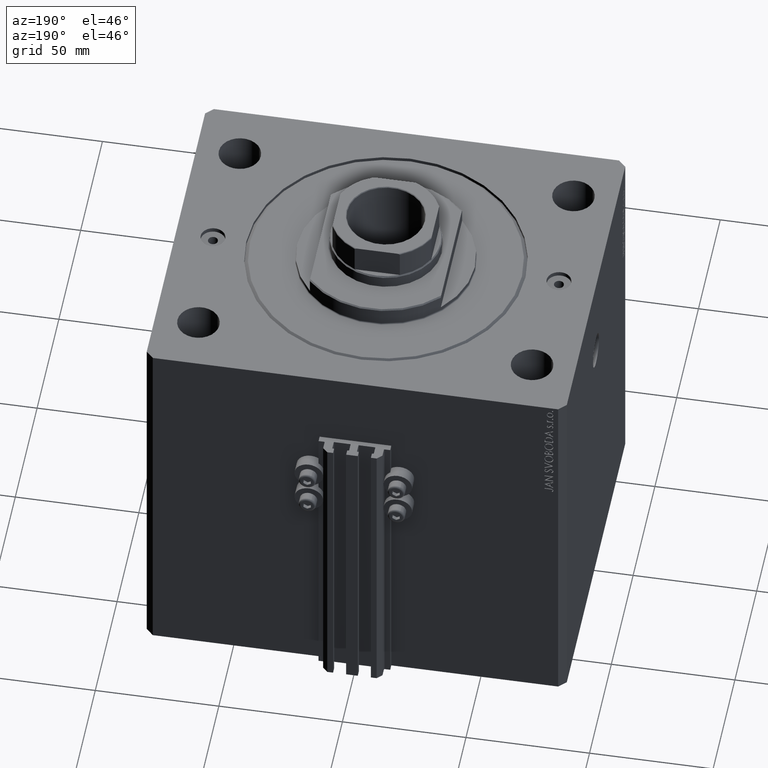
[diagram: clean part render]
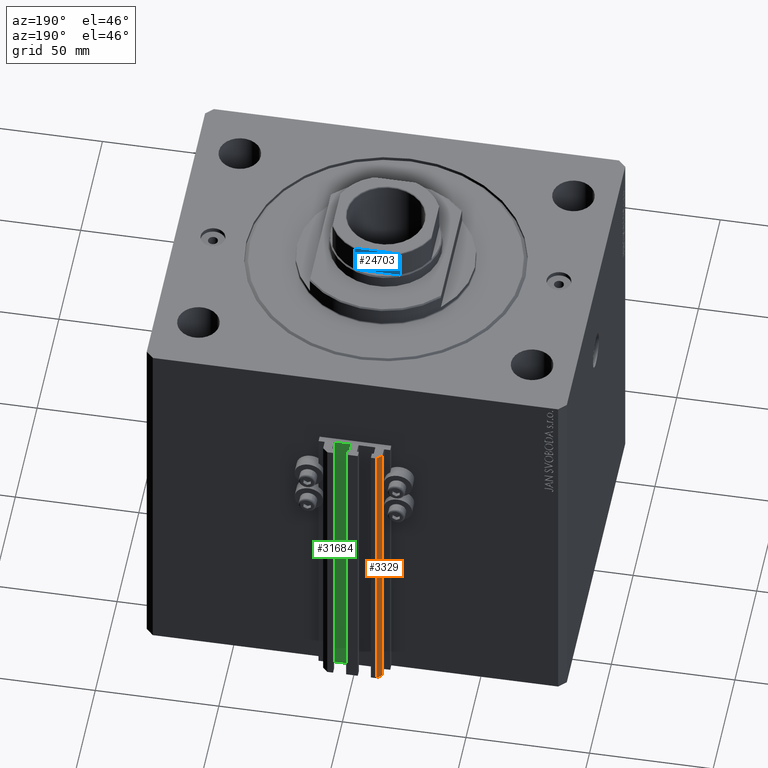
[diagram: same view with three faces highlighted in distinct colors, each labeled with its STEP entity id]
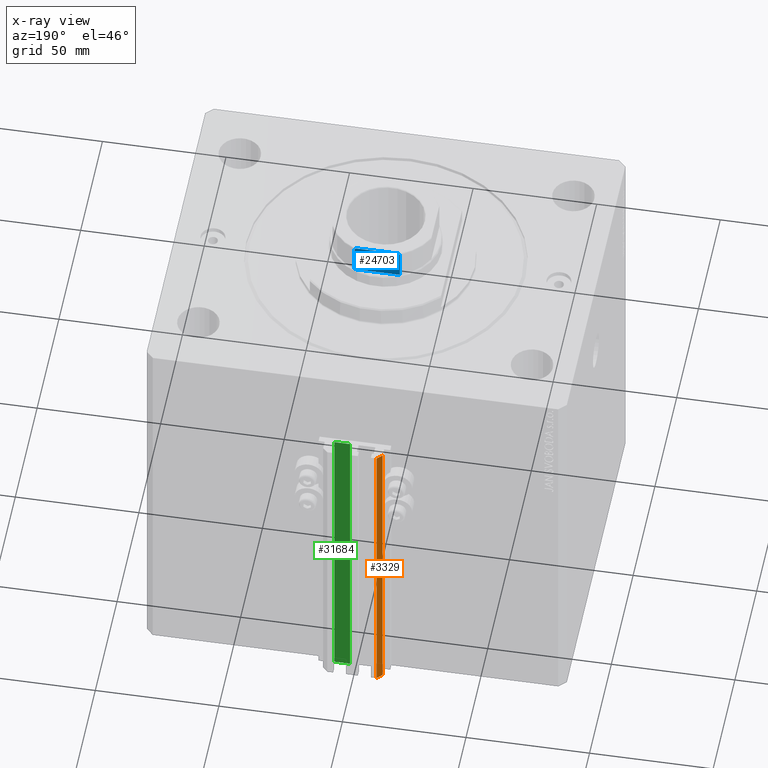
[diagram: x-ray of the same camera — body ghosted, the three highlighted faces saturated]
A machine part, auxiliary view with three faces highlighted in distinct colors.
The next image is the same camera in x-ray (body ghosted, the three faces saturated) — at least one of them is partly hidden behind the body in this view.
Their STEP definitions:

[orange] entity #3329 — the highlighted planar face has unit normal (-0.7071, 0.7071, 0).
#1646 = ORIENTED_EDGE ( 'NONE', *, *, #19211, .F. ) ;
#1848 = EDGE_LOOP ( 'NONE', ( #46289, #1646, #22644, #17318 ) ) ;
#3329 = ADVANCED_FACE ( 'NONE', ( #39361 ), #6660, .T. ) ;
#4456 = VERTEX_POINT ( 'NONE', #31312 ) ;
#4729 = VERTEX_POINT ( 'NONE', #43874 ) ;
#6592 = EDGE_CURVE ( 'NONE', #4456, #31074, #30057, .T. ) ;
#6660 = PLANE ( 'NONE',  #15258 ) ;
#6681 = EDGE_CURVE ( 'NONE', #4729, #31074, #26952, .T. ) ;
#6946 = VECTOR ( 'NONE', #16697, 1000.000000000000114 ) ;
#7045 = VECTOR ( 'NONE', #29815, 1000.000000000000000 ) ;
#7686 = VERTEX_POINT ( 'NONE', #16040 ) ;
#8010 = DIRECTION ( 'NONE',  ( 0.000000000000000000, 0.000000000000000000, 1.000000000000000000 ) ) ;
#8089 = CARTESIAN_POINT ( 'NONE',  ( -10.00000000000000000, 78.00000000000001421, -33.00000000000000000 ) ) ;
#8812 = DIRECTION ( 'NONE',  ( -0.7071067811865446862, -0.7071067811865503483, 0.000000000000000000 ) ) ;
#8845 = LINE ( 'NONE', #27451, #6946 ) ;
#9782 = DIRECTION ( 'NONE',  ( -0.7071067811865447972, -0.7071067811865502373, 0.000000000000000000 ) ) ;
#12302 = LINE ( 'NONE', #23288, #37857 ) ;
#13604 = CARTESIAN_POINT ( 'NONE',  ( -12.00000000000000000, 76.00000000000000000, -33.00000000000000000 ) ) ;
#13846 = VECTOR ( 'NONE', #8812, 1000.000000000000114 ) ;
#15253 = CARTESIAN_POINT ( 'NONE',  ( -12.00000000000000000, 76.00000000000000000, -159.0000000000000000 ) ) ;
#15258 = AXIS2_PLACEMENT_3D ( 'NONE', #34828, #16702, #9782 ) ;
#16040 = CARTESIAN_POINT ( 'NONE',  ( -10.00000000000000000, 78.00000000000001421, -159.0000000000000000 ) ) ;
#16697 = DIRECTION ( 'NONE',  ( -0.7071067811865446862, -0.7071067811865503483, 0.000000000000000000 ) ) ;
#16702 = DIRECTION ( 'NONE',  ( -0.7071067811865502373, 0.7071067811865447972, 0.000000000000000000 ) ) ;
#17318 = ORIENTED_EDGE ( 'NONE', *, *, #6681, .T. ) ;
#19211 = EDGE_CURVE ( 'NONE', #7686, #4456, #12302, .T. ) ;
#22644 = ORIENTED_EDGE ( 'NONE', *, *, #35304, .T. ) ;
#23288 = CARTESIAN_POINT ( 'NONE',  ( -10.00000000000000000, 78.00000000000001421, -159.0000000000000000 ) ) ;
#26952 = LINE ( 'NONE', #15253, #7045 ) ;
#27451 = CARTESIAN_POINT ( 'NONE',  ( -10.00000000000000000, 78.00000000000001421, -159.0000000000000000 ) ) ;
#29815 = DIRECTION ( 'NONE',  ( 0.000000000000000000, 0.000000000000000000, 1.000000000000000000 ) ) ;
#30057 = LINE ( 'NONE', #8089, #13846 ) ;
#31074 = VERTEX_POINT ( 'NONE', #13604 ) ;
#31312 = CARTESIAN_POINT ( 'NONE',  ( -10.00000000000000000, 78.00000000000001421, -33.00000000000000000 ) ) ;
#34828 = CARTESIAN_POINT ( 'NONE',  ( -10.00000000000000000, 78.00000000000001421, -159.0000000000000000 ) ) ;
#35304 = EDGE_CURVE ( 'NONE', #7686, #4729, #8845, .T. ) ;
#37857 = VECTOR ( 'NONE', #8010, 1000.000000000000000 ) ;
#39361 = FACE_OUTER_BOUND ( 'NONE', #1848, .T. ) ;
#43874 = CARTESIAN_POINT ( 'NONE',  ( -12.00000000000000000, 76.00000000000000000, -159.0000000000000000 ) ) ;
#46289 = ORIENTED_EDGE ( 'NONE', *, *, #6592, .F. ) ;

[blue] entity #24703 — the highlighted planar face has unit normal (0, -1, 0).
#1285 = CARTESIAN_POINT ( 'NONE',  ( -9.055524318101882741, 19.99999999999999645, 154.8141986763097293 ) ) ;
#2125 = CARTESIAN_POINT ( 'NONE',  ( 9.165151389911676105, 20.00000000000000000, 154.6000000000000227 ) ) ;
#3697 = LINE ( 'NONE', #3937, #41048 ) ;
#3937 = CARTESIAN_POINT ( 'NONE',  ( 9.165151389911676105, 20.00000000000000000, -0.001000000000001000089 ) ) ;
#4396 = CARTESIAN_POINT ( 'NONE',  ( -8.731041210088298143, 20.00000000000000000, 154.9862065548025498 ) ) ;
#6854 = CARTESIAN_POINT ( 'NONE',  ( 8.731854386667050605, 20.00000000000000711, 154.9859761974170169 ) ) ;
#7007 = DIRECTION ( 'NONE',  ( -1.000000000000000000, -0.000000000000000000, -0.000000000000000000 ) ) ;
#7158 = B_SPLINE_CURVE_WITH_KNOTS ( 'NONE', 3,
 ( #39551, #17369, #31686, #6854, #17140, #32156, #21188, #21428, #46011, #17843 ),
 .UNSPECIFIED., .F., .F.,
 ( 4, 2, 2, 2, 4 ),
 ( 1.734723475976807094E-18, 0.0007281986681936841906, 0.001092298002290512408, 0.001274347669338924240, 0.001456397336387336289 ),
 .UNSPECIFIED. ) ;
#7475 = LINE ( 'NONE', #18469, #24191 ) ;
#10438 = CARTESIAN_POINT ( 'NONE',  ( -9.165151389911676105, 20.00000000000000000, -0.001000000000001000089 ) ) ;
#13364 = EDGE_CURVE ( 'NONE', #44623, #20774, #17604, .T. ) ;
#13495 = ORIENTED_EDGE ( 'NONE', *, *, #24689, .F. ) ;
#13577 = VECTOR ( 'NONE', #39114, 1000.000000000000000 ) ;
#14033 = CARTESIAN_POINT ( 'NONE',  ( -9.165151389911674329, 20.00000000000000000, 143.0999999999999943 ) ) ;
#17140 = CARTESIAN_POINT ( 'NONE',  ( 8.849170428565226842, 20.00000000000000355, 154.9446655850052252 ) ) ;
#17369 = CARTESIAN_POINT ( 'NONE',  ( 8.134318822980979746, 20.00000000000000000, 155.1000000000000512 ) ) ;
#17604 = LINE ( 'NONE', #10438, #26999 ) ;
#17799 = EDGE_LOOP ( 'NONE', ( #39113, #42681, #13495, #41977, #45531, #40458 ) ) ;
#17843 = CARTESIAN_POINT ( 'NONE',  ( 9.165151389911676105, 20.00000000000000000, 154.6000000000000227 ) ) ;
#18469 = CARTESIAN_POINT ( 'NONE',  ( -20.00000000000000355, 20.00000000000000000, 155.1000000000000227 ) ) ;
#18734 = CARTESIAN_POINT ( 'NONE',  ( -7.889866919029745240, 20.00000000000000000, 155.1000000000000227 ) ) ;
#19221 = CARTESIAN_POINT ( 'NONE',  ( -9.005650948982573567, 20.00000000000000000, 154.8512182151569050 ) ) ;
#19802 = LINE ( 'NONE', #42437, #13577 ) ;
#20774 = VERTEX_POINT ( 'NONE', #46665 ) ;
#21188 = CARTESIAN_POINT ( 'NONE',  ( 9.056020599733276555, 20.00000000000000000, 154.8137161059354128 ) ) ;
#21428 = CARTESIAN_POINT ( 'NONE',  ( 9.135966866521640029, 19.99999999999999645, 154.7203262903151142 ) ) ;
#21453 = CARTESIAN_POINT ( 'NONE',  ( -7.889866919029745240, 20.00000000000000000, 155.1000000000000227 ) ) ;
#22095 = DIRECTION ( 'NONE',  ( 0.000000000000000000, -1.000000000000000000, 0.000000000000000000 ) ) ;
#22573 = DIRECTION ( 'NONE',  ( -0.000000000000000000, -0.000000000000000000, 1.000000000000000000 ) ) ;
#24191 = VECTOR ( 'NONE', #7007, 1000.000000000000000 ) ;
#24689 = EDGE_CURVE ( 'NONE', #33824, #38084, #3697, .T. ) ;
#24703 = ADVANCED_FACE ( 'NONE', ( #40933 ), #25443, .F. ) ;
#25079 = EDGE_CURVE ( 'NONE', #44886, #45983, #7475, .T. ) ;
#25443 = PLANE ( 'NONE',  #31142 ) ;
#25902 = CARTESIAN_POINT ( 'NONE',  ( -20.00000000000000355, 20.00000000000000000, 155.1000000000000227 ) ) ;
#26607 = CARTESIAN_POINT ( 'NONE',  ( -8.377106304411496396, 20.00000000000000000, 155.0787779673725311 ) ) ;
#26757 = EDGE_CURVE ( 'NONE', #20774, #45983, #41931, .T. ) ;
#26999 = VECTOR ( 'NONE', #29059, 1000.000000000000000 ) ;
#27570 = EDGE_CURVE ( 'NONE', #33824, #44623, #19802, .T. ) ;
#29059 = DIRECTION ( 'NONE',  ( -0.000000000000000000, -0.000000000000000000, 1.000000000000000000 ) ) ;
#30187 = CARTESIAN_POINT ( 'NONE',  ( -8.847700323750236961, 19.99999999999999645, 154.9454059444999814 ) ) ;
#30427 = CARTESIAN_POINT ( 'NONE',  ( -9.135943898188770618, 20.00000000000000355, 154.7204496596643253 ) ) ;
#30731 = CARTESIAN_POINT ( 'NONE',  ( 9.165151389911676105, 20.00000000000000000, 143.0999999999999943 ) ) ;
#31142 = AXIS2_PLACEMENT_3D ( 'NONE', #25902, #22095, #44036 ) ;
#31686 = CARTESIAN_POINT ( 'NONE',  ( 8.376270842886095025, 20.00000000000000000, 155.0790317661354152 ) ) ;
#32156 = CARTESIAN_POINT ( 'NONE',  ( 9.005944049512764948, 20.00000000000000000, 154.8509746237501190 ) ) ;
#33768 = CARTESIAN_POINT ( 'NONE',  ( -8.134263528852955005, 20.00000000000000000, 155.1000000000000227 ) ) ;
#33824 = VERTEX_POINT ( 'NONE', #30731 ) ;
#38084 = VERTEX_POINT ( 'NONE', #2125 ) ;
#39113 = ORIENTED_EDGE ( 'NONE', *, *, #25079, .F. ) ;
#39114 = DIRECTION ( 'NONE',  ( -1.000000000000000000, -0.000000000000000000, -0.000000000000000000 ) ) ;
#39509 = CARTESIAN_POINT ( 'NONE',  ( 7.889866919029743464, 20.00000000000000000, 155.1000000000000227 ) ) ;
#39551 = CARTESIAN_POINT ( 'NONE',  ( 7.889866919029743464, 20.00000000000000000, 155.1000000000000227 ) ) ;
#40458 = ORIENTED_EDGE ( 'NONE', *, *, #26757, .T. ) ;
#40459 = CARTESIAN_POINT ( 'NONE',  ( -9.165151389911676105, 20.00000000000000000, 154.6000000000000227 ) ) ;
#40933 = FACE_OUTER_BOUND ( 'NONE', #17799, .T. ) ;
#41048 = VECTOR ( 'NONE', #22573, 1000.000000000000000 ) ;
#41931 = B_SPLINE_CURVE_WITH_KNOTS ( 'NONE', 3,
 ( #40459, #44736, #30427, #1285, #19221, #30187, #4396, #26607, #33768, #18734 ),
 .UNSPECIFIED., .F., .F.,
 ( 4, 2, 2, 2, 4 ),
 ( 0.000000000000000000, 0.0001842078696387801026, 0.0003684157392775602052, 0.0007368314785551675732, 0.001473662957110382201 ),
 .UNSPECIFIED. ) ;
#41977 = ORIENTED_EDGE ( 'NONE', *, *, #27570, .T. ) ;
#42437 = CARTESIAN_POINT ( 'NONE',  ( -20.00000000000000355, 20.00000000000000000, 143.0999999999999943 ) ) ;
#42681 = ORIENTED_EDGE ( 'NONE', *, *, #43203, .T. ) ;
#43203 = EDGE_CURVE ( 'NONE', #44886, #38084, #7158, .T. ) ;
#44036 = DIRECTION ( 'NONE',  ( 0.000000000000000000, -0.000000000000000000, -1.000000000000000000 ) ) ;
#44623 = VERTEX_POINT ( 'NONE', #14033 ) ;
#44736 = CARTESIAN_POINT ( 'NONE',  ( -9.165151389911676105, 19.99999999999999645, 154.6624095850606295 ) ) ;
#44886 = VERTEX_POINT ( 'NONE', #39509 ) ;
#45531 = ORIENTED_EDGE ( 'NONE', *, *, #13364, .T. ) ;
#45983 = VERTEX_POINT ( 'NONE', #21453 ) ;
#46011 = CARTESIAN_POINT ( 'NONE',  ( 9.165151389911681434, 20.00000000000000355, 154.6622865831653542 ) ) ;
#46665 = CARTESIAN_POINT ( 'NONE',  ( -9.165151389911676105, 20.00000000000000000, 154.6000000000000227 ) ) ;

[green] entity #31684 — the highlighted planar face has unit normal (0, 1, 0).
#521 = CARTESIAN_POINT ( 'NONE',  ( 1.800000000000000933, 72.00000000000001421, -159.0000000000000000 ) ) ;
#1950 = CARTESIAN_POINT ( 'NONE',  ( 8.199999999999999289, 72.00000000000001421, -159.0000000000000000 ) ) ;
#2734 = LINE ( 'NONE', #43075, #17487 ) ;
#2841 = ORIENTED_EDGE ( 'NONE', *, *, #17935, .T. ) ;
#4587 = DIRECTION ( 'NONE',  ( 0.000000000000000000, 0.000000000000000000, 1.000000000000000000 ) ) ;
#5762 = CARTESIAN_POINT ( 'NONE',  ( 8.199999999999999289, 72.00000000000001421, -33.00000000000000000 ) ) ;
#5998 = LINE ( 'NONE', #5762, #16875 ) ;
#8592 = DIRECTION ( 'NONE',  ( -1.000000000000000000, 0.000000000000000000, 0.000000000000000000 ) ) ;
#8647 = EDGE_CURVE ( 'NONE', #33604, #11119, #11531, .T. ) ;
#10355 = PLANE ( 'NONE',  #25256 ) ;
#10589 = DIRECTION ( 'NONE',  ( 0.000000000000000000, 0.000000000000000000, 1.000000000000000000 ) ) ;
#11119 = VERTEX_POINT ( 'NONE', #13624 ) ;
#11531 = LINE ( 'NONE', #521, #26132 ) ;
#13624 = CARTESIAN_POINT ( 'NONE',  ( 1.800000000000000933, 72.00000000000001421, -33.00000000000000000 ) ) ;
#14483 = CARTESIAN_POINT ( 'NONE',  ( 8.199999999999999289, 72.00000000000001421, -33.00000000000000000 ) ) ;
#15826 = ORIENTED_EDGE ( 'NONE', *, *, #8647, .T. ) ;
#16875 = VECTOR ( 'NONE', #34186, 1000.000000000000000 ) ;
#17240 = CARTESIAN_POINT ( 'NONE',  ( 1.800000000000000933, 72.00000000000001421, -159.0000000000000000 ) ) ;
#17487 = VECTOR ( 'NONE', #38794, 1000.000000000000000 ) ;
#17935 = EDGE_CURVE ( 'NONE', #34989, #33604, #30772, .T. ) ;
#18468 = FACE_OUTER_BOUND ( 'NONE', #40403, .T. ) ;
#25256 = AXIS2_PLACEMENT_3D ( 'NONE', #46384, #46852, #10589 ) ;
#26132 = VECTOR ( 'NONE', #4587, 1000.000000000000000 ) ;
#30607 = ORIENTED_EDGE ( 'NONE', *, *, #41458, .F. ) ;
#30772 = LINE ( 'NONE', #37211, #43903 ) ;
#31684 = ADVANCED_FACE ( 'NONE', ( #18468 ), #10355, .T. ) ;
#31901 = EDGE_CURVE ( 'NONE', #35790, #11119, #5998, .T. ) ;
#33604 = VERTEX_POINT ( 'NONE', #17240 ) ;
#34186 = DIRECTION ( 'NONE',  ( -1.000000000000000000, 0.000000000000000000, 0.000000000000000000 ) ) ;
#34989 = VERTEX_POINT ( 'NONE', #1950 ) ;
#35790 = VERTEX_POINT ( 'NONE', #14483 ) ;
#37211 = CARTESIAN_POINT ( 'NONE',  ( 8.199999999999999289, 72.00000000000001421, -159.0000000000000000 ) ) ;
#38794 = DIRECTION ( 'NONE',  ( 0.000000000000000000, 0.000000000000000000, 1.000000000000000000 ) ) ;
#39932 = ORIENTED_EDGE ( 'NONE', *, *, #31901, .F. ) ;
#40403 = EDGE_LOOP ( 'NONE', ( #39932, #30607, #2841, #15826 ) ) ;
#41458 = EDGE_CURVE ( 'NONE', #34989, #35790, #2734, .T. ) ;
#43075 = CARTESIAN_POINT ( 'NONE',  ( 8.199999999999999289, 72.00000000000001421, -159.0000000000000000 ) ) ;
#43903 = VECTOR ( 'NONE', #8592, 1000.000000000000000 ) ;
#46384 = CARTESIAN_POINT ( 'NONE',  ( 8.199999999999999289, 72.00000000000001421, -159.0000000000000000 ) ) ;
#46852 = DIRECTION ( 'NONE',  ( 0.000000000000000000, 1.000000000000000000, -0.000000000000000000 ) ) ;